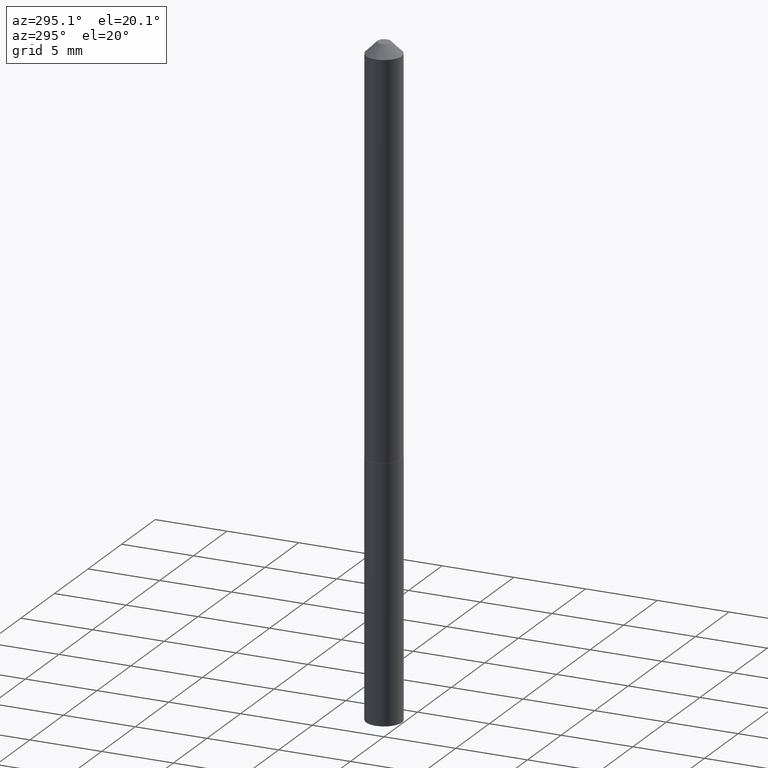
[diagram: clean part render]
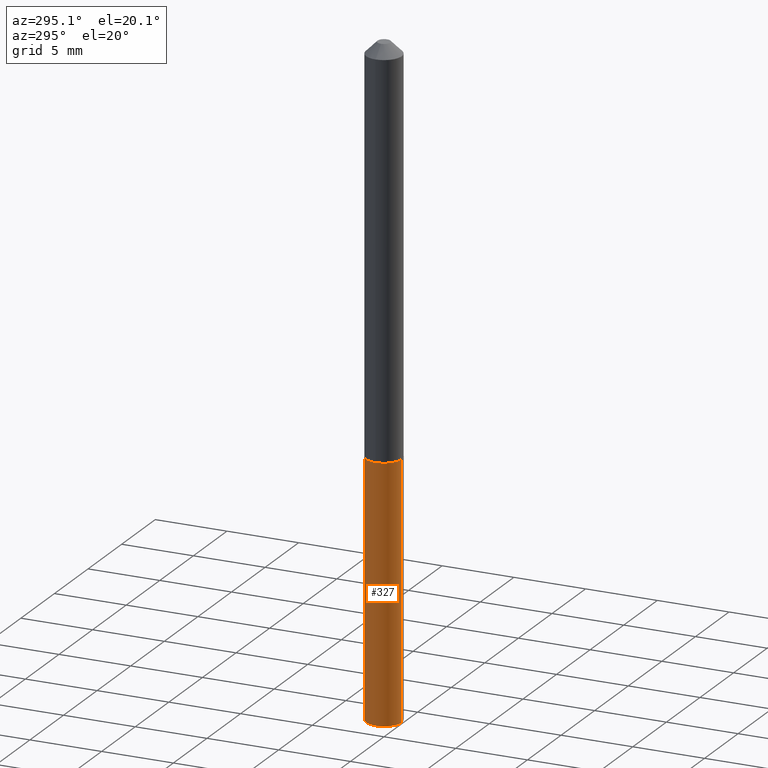
[diagram: same view with one face highlighted and labeled with its STEP entity id]
A machine part, auxiliary view. The second image highlights one B-rep face of the part: STEP entity #327.
In plain terms, the highlighted cylindrical surface (edge-blend (fillet) strip) has radius 1.2446 mm, axis along (-0, 0, 1).
Its self-contained STEP definition (entity closure, byte-faithful):
#13 = AXIS2_PLACEMENT_3D ( 'NONE', #41, #16, #311 ) ;
#16 = DIRECTION ( 'NONE',  ( -2.445468108961849086E-29, 3.491482337306576888E-15, 1.000000000000000000 ) ) ;
#31 = CARTESIAN_POINT ( 'NONE',  ( 3.481659405224759258E-16, 0.04899999999999617162, -1.098000000000000309 ) ) ;
#34 = AXIS2_PLACEMENT_3D ( 'NONE', #226, #347, #78 ) ;
#40 = ORIENTED_EDGE ( 'NONE', *, *, #247, .F. ) ;
#41 = CARTESIAN_POINT ( 'NONE',  ( 2.685124749191280284E-29, -3.833646510049774087E-15, -1.098000000000000087 ) ) ;
#65 = EDGE_LOOP ( 'NONE', ( #368, #371, #129, #40 ) ) ;
#70 = EDGE_CURVE ( 'NONE', #213, #110, #82, .T. ) ;
#78 = DIRECTION ( 'NONE',  ( -6.982962677686265922E-15, -1.000000000000000000, 2.787599993534962411E-15 ) ) ;
#82 = LINE ( 'NONE', #31, #104 ) ;
#83 = AXIS2_PLACEMENT_3D ( 'NONE', #302, #336, #194 ) ;
#100 = CARTESIAN_POINT ( 'NONE',  ( 3.481659405224930342E-16, 0.04899999999999615774, -1.098000000000000309 ) ) ;
#104 = VECTOR ( 'NONE', #363, 39.37007874015748143 ) ;
#110 = VERTEX_POINT ( 'NONE', #100 ) ;
#115 = FACE_OUTER_BOUND ( 'NONE', #65, .T. ) ;
#129 = ORIENTED_EDGE ( 'NONE', *, *, #184, .T. ) ;
#130 = LINE ( 'NONE', #169, #232 ) ;
#138 = CARTESIAN_POINT ( 'NONE',  ( -3.421651712066001549E-16, -0.04900000000000383216, -1.098000000000000087 ) ) ;
#169 = CARTESIAN_POINT ( 'NONE',  ( -3.421651712066001549E-16, -0.04900000000000383216, -1.098000000000000087 ) ) ;
#174 = EDGE_CURVE ( 'NONE', #213, #272, #318, .T. ) ;
#184 = EDGE_CURVE ( 'NONE', #272, #256, #130, .T. ) ;
#194 = DIRECTION ( 'NONE',  ( -6.982962677686265922E-15, -1.000000000000000000, 5.575199987069924823E-15 ) ) ;
#213 = VERTEX_POINT ( 'NONE', #283 ) ;
#223 = CYLINDRICAL_SURFACE ( 'NONE', #34, 0.04900000000000000189 ) ;
#226 = CARTESIAN_POINT ( 'NONE',  ( 2.685124749191280284E-29, -3.833646510049774087E-15, -1.098000000000000087 ) ) ;
#232 = VECTOR ( 'NONE', #304, 39.37007874015748143 ) ;
#247 = EDGE_CURVE ( 'NONE', #110, #256, #298, .T. ) ;
#256 = VERTEX_POINT ( 'NONE', #138 ) ;
#272 = VERTEX_POINT ( 'NONE', #377 ) ;
#283 = CARTESIAN_POINT ( 'NONE',  ( 3.481659405224928370E-16, 0.04899999999999372913, -1.794665458520957158 ) ) ;
#298 = CIRCLE ( 'NONE', #13, 0.04900000000000000189 ) ;
#302 = CARTESIAN_POINT ( 'NONE',  ( 4.388797910619564098E-29, -6.266041653487281956E-15, -1.794665458520956935 ) ) ;
#304 = DIRECTION ( 'NONE',  ( -2.445468108961849086E-29, 3.491482337306577282E-15, 1.000000000000000000 ) ) ;
#311 = DIRECTION ( 'NONE',  ( -6.982962677686265922E-15, -1.000000000000000000, 2.787599993534962411E-15 ) ) ;
#318 = CIRCLE ( 'NONE', #83, 0.04900000000000000189 ) ;
#327 = ADVANCED_FACE ( 'NONE', ( #115 ), #223, .T. ) ;
#336 = DIRECTION ( 'NONE',  ( -2.445468108961849086E-29, 3.491482337306576888E-15, 1.000000000000000000 ) ) ;
#347 = DIRECTION ( 'NONE',  ( -2.445468108961849086E-29, 3.491482337306576888E-15, 1.000000000000000000 ) ) ;
#363 = DIRECTION ( 'NONE',  ( -2.445468108961849086E-29, 3.491482337306577282E-15, 1.000000000000000000 ) ) ;
#368 = ORIENTED_EDGE ( 'NONE', *, *, #70, .F. ) ;
#371 = ORIENTED_EDGE ( 'NONE', *, *, #174, .T. ) ;
#377 = CARTESIAN_POINT ( 'NONE',  ( -3.421651712065830464E-16, -0.04900000000000625383, -1.794665458520956491 ) ) ;